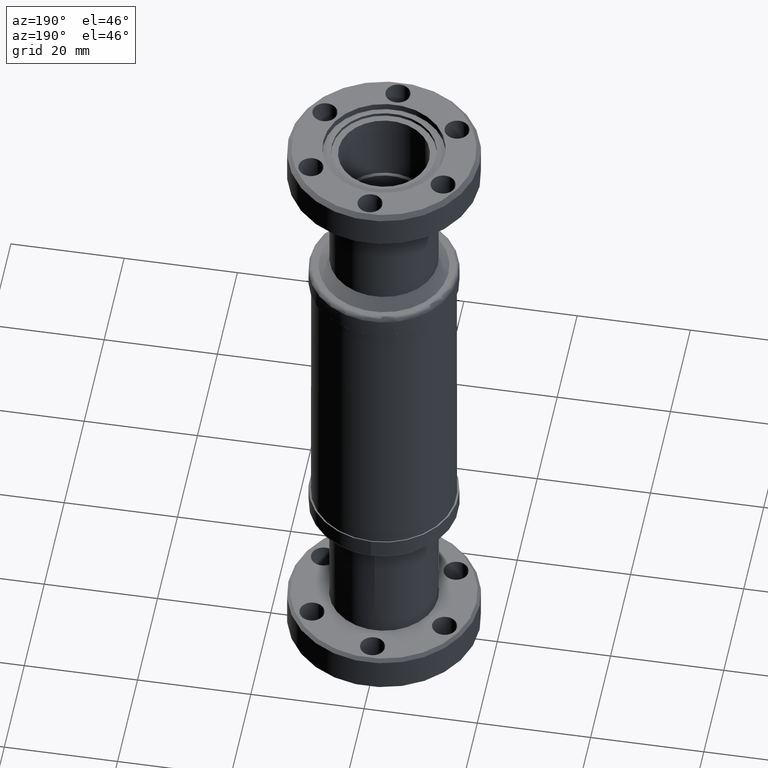
[diagram: clean part render]
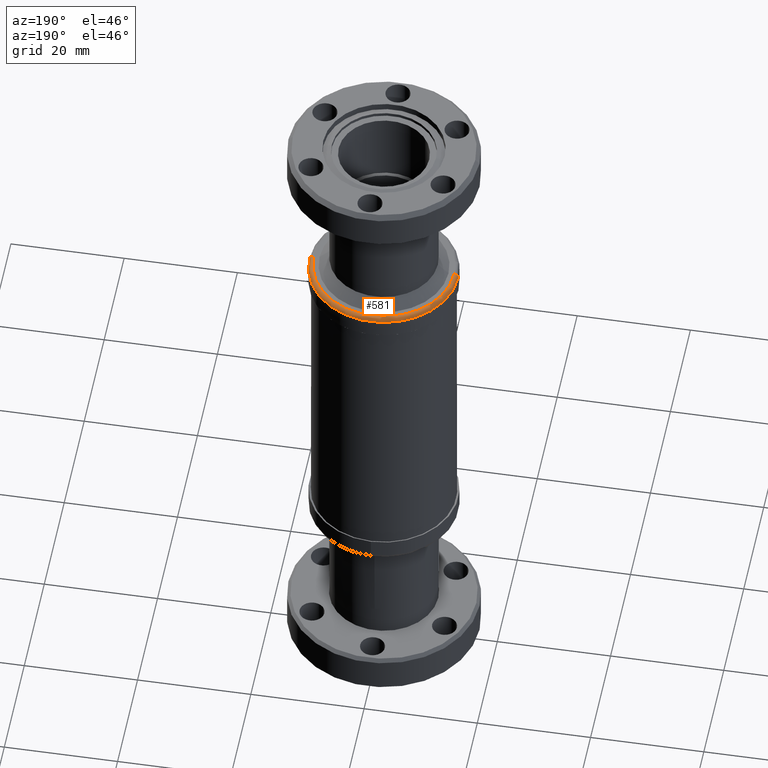
[diagram: same view with one face highlighted and labeled with its STEP entity id]
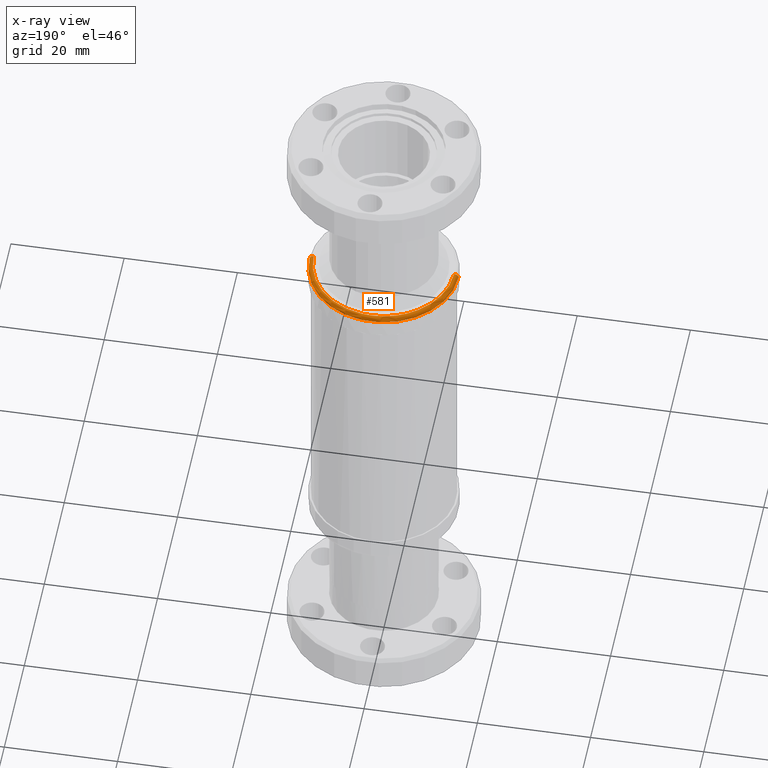
[diagram: x-ray of the same camera — body ghosted, the highlighted face saturated]
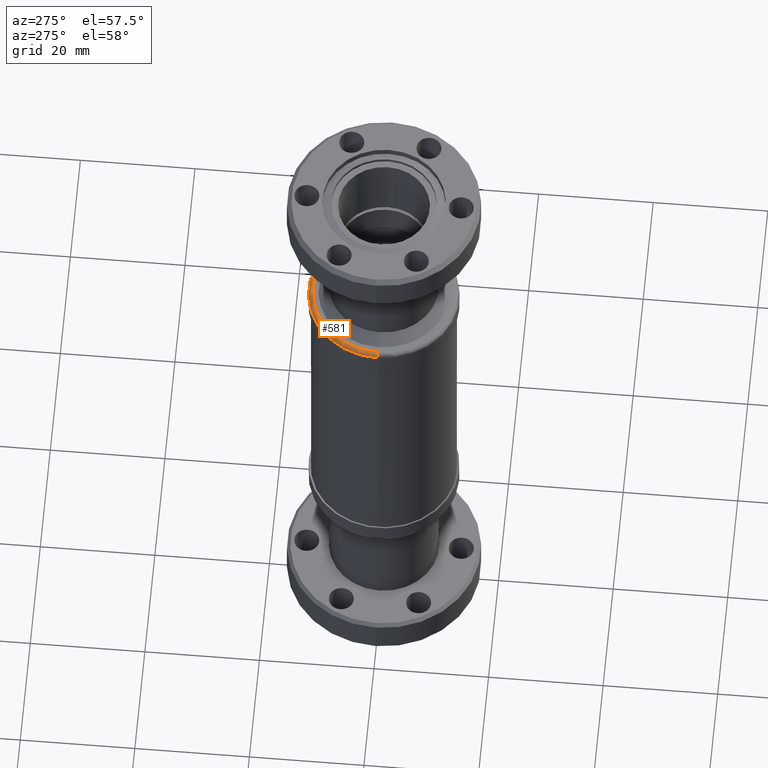
[diagram: same view with one face highlighted and labeled with its STEP entity id]
A machine part, auxiliary view. The second image highlights one B-rep face of the part: STEP entity #581.
The next image is the same camera in x-ray: the body ghosted, the highlighted face saturated — about 0% of this face is hidden behind the body in this view.
A second angle (auxiliary view) of the same face is appended — the face is thin or edge-on in the first view.
In plain terms, the highlighted toroidal blend (fillet) surface has major radius 12.3825 mm and minor (blend) radius 0.762 mm.
Its self-contained STEP definition (entity closure, byte-faithful):
#18 = CIRCLE ( 'NONE', #858, 0.5174999999999986300 ) ;
#76 = CIRCLE ( 'NONE', #847, 0.03000000000000077300 ) ;
#84 = ORIENTED_EDGE ( 'NONE', *, *, #1749, .T. ) ;
#266 = ORIENTED_EDGE ( 'NONE', *, *, #476, .T. ) ;
#290 = ORIENTED_EDGE ( 'NONE', *, *, #475, .F. ) ;
#333 = ORIENTED_EDGE ( 'NONE', *, *, #1849, .T. ) ;
#405 = B_SPLINE_CURVE_WITH_KNOTS ( 'NONE', 3,
 ( #2281, #2280, #2274, #2273, #2271, #2270, #2269, #2267, #2266, #2265, #2264, #2263, #2262, #2261, #2260, #2259, #2257, #2256, #2255, #2253, #2252, #2251, #2249, #2248, #2247, #2246, #2245, #2244, #2243, #2242, #2241, #2240, #2239, #2237, #2236, #2235, #2233, #2232, #2230, #2229, #2228, #2227, #2226, #2225, #2224, #2223, #2222, #2221, #2220, #2219, #2218, #2217, #2216, #2215, #2214, #2213, #2212, #2211, #2209, #2207, #2206, #2205, #2204, #2203, #2202, #2201, #2200, #2199, #2198, #2197, #2196, #2195, #2194, #2193, #2192, #2190, #2189, #2188, #2187 ),
 .UNSPECIFIED., .F., .F.,
 ( 4, 2, 2, 2, 1, 1, 2, 2, 2, 2, 2, 2, 2, 1, 2, 2, 1, 1, 2, 2, 2, 2, 2, 2, 2, 2, 1, 2, 2, 2, 2, 1, 1, 2, 2, 2, 2, 2, 1, 2, 2, 1, 1, 2, 4 ),
 ( 0.0000000000000000000, 0.05809807759236154700, 0.06172920744188420400, 0.06263698990426483400, 0.06354477236664547700, 0.06536033729140663900, 0.07262259699045139900, 0.08714711638854089100, 0.09077824623806320100, 0.09440937608758552500, 0.1016716357866301000, 0.1161961551847192500, 0.1234584148837639100, 0.1243661973461445700, 0.1248200885773347700, 0.1252739798085250000, 0.1270895447332858800, 0.1307206745828075600, 0.1452451939808944400, 0.1742942327770681300, 0.2323923103694156000, 0.2469168297675024800, 0.2614413491655893700, 0.2904903879617630200, 0.3485884655541102700, 0.3631129849521970700, 0.3703752446512405500, 0.3740063745007622400, 0.3776375043502839800, 0.4066865431464583000, 0.4357355819426325700, 0.4366433644050130000, 0.4370972556362032200, 0.4373242012517983800, 0.4375511468673934900, 0.4393667117921539700, 0.4429978416416748300, 0.4502601013407167600, 0.4507139925719068600, 0.4509409381875019700, 0.4511678838030970300, 0.4520756662654772400, 0.4538912311902377200, 0.4575223610397586300, 0.4647846207388004500 ),
 .UNSPECIFIED. ) ;
#410 = B_SPLINE_CURVE_WITH_KNOTS ( 'NONE', 3,
 ( #1545, #1552, #1539, #1538, #1537, #1536, #1534, #1533, #1532, #1531, #1530, #1529, #1528, #1527, #1526, #1525, #1524, #1523, #1521, #1520, #1519, #1516, #1514, #1513, #1512, #1511, #1510, #1509, #1508, #1507, #1506, #1505, #1504, #1503, #1502, #1501, #1500, #1499, #1497, #1496, #1495, #1494, #1493, #1492, #1491, #1490, #1488, #1487, #1486, #1485, #1484, #1483, #1482, #1481, #1480, #1479, #1478, #1477, #1476, #1475, #1474, #1473, #1471, #1470, #1467, #1466, #1465, #1464, #1463, #1461, #1460, #1459, #1456, #1455, #1454, #1453, #1452, #1451, #1450, #1449, #1448, #1446, #1445, #1444, #1443, #1442, #1441, #1440, #1438, #1437, #1436, #1433, #1432, #1431, #1430, #1429, #1428, #1427, #1426, #1425, #1424, #1423, #1422, #1420, #1418, #1415, #1414, #1413, #1411, #1410, #1409, #1408, #1407, #1406, #1405, #1404, #1403, #1401, #1400, #1399, #1398, #1397, #1396, #1395, #1394, #1392, #1391, #1390, #1389, #1388, #1386, #1385, #1384, #1383, #1382, #1381, #1380 ),
 .UNSPECIFIED., .F., .F.,
 ( 4, 2, 2, 1, 1, 1, 1, 1, 2, 2, 1, 2, 2, 2, 2, 2, 2, 2, 2, 2, 1, 1, 2, 2, 1, 2, 2, 1, 1, 2, 2, 2, 2, 1, 2, 2, 1, 2, 2, 2, 2, 1, 2, 2, 2, 2, 2, 2, 2, 1, 1, 1, 2, 2, 2, 2, 2, 1, 2, 2, 1, 1, 1, 2, 1, 2, 2, 1, 1, 2, 1, 1, 2, 2, 1, 2, 2, 2, 2, 2, 2, 4 ),
 ( 0.4658478909529416000, 0.4992323952210904200, 0.5034054582546090300, 0.5075785212881276400, 0.5159246473551648600, 0.5242707734222020700, 0.5284438364557206800, 0.5305303679724801000, 0.5310520008516699300, 0.5313128172912648900, 0.5315736337308597500, 0.5326168994892392900, 0.5409630255562751800, 0.5451360885897931200, 0.5472226201065520900, 0.5493091516233110600, 0.5576552776903469500, 0.5618283407238648900, 0.5623499736030547200, 0.5628716064822444400, 0.5639148722406239800, 0.5660014037573828400, 0.5993859080255260500, 0.6160781601595976000, 0.6244242862266333700, 0.6249459191058232000, 0.6252067355454180600, 0.6254675519850129200, 0.6265108177433924600, 0.6285973492601517600, 0.6327704122936704800, 0.6369434753271892000, 0.6390300068439486200, 0.6400732726023283800, 0.6405949054815182100, 0.6408557219211131800, 0.6411165383607080300, 0.6494626644277470300, 0.6536357274612665200, 0.6557222589780260500, 0.6578087904947858000, 0.6661549165618242400, 0.6828471686959011200, 0.6870202317294203900, 0.6911932947629395600, 0.6995394208299781100, 0.7329239250981325300, 0.7496161772322097500, 0.7501378101113995700, 0.7506594429905892900, 0.7517027087489693800, 0.7537892402657296900, 0.7579623032992504100, 0.7663084293662916200, 0.7996929336344560400, 0.8163851857685382500, 0.8205582488020588500, 0.8210798816812487900, 0.8213406981208438700, 0.8216015145604389500, 0.8226447803188190500, 0.8247313118355791300, 0.8330774379026195700, 0.8664619421707813200, 0.8831541943048621900, 0.8915003203719027400, 0.8935868518886629400, 0.8956733834054230200, 0.8998464464389432900, 0.9332309507071053800, 0.9415770767741459300, 0.9457501398076662000, 0.9462717726868562500, 0.9467934055660463000, 0.9478366713244263900, 0.9499232028411865900, 0.9666154549752674600, 0.9707885180087876300, 0.9728750495255478200, 0.9749615810423077900, 0.9833077071093483400, 0.9999999592434292200 ),
 .UNSPECIFIED. ) ;
#461 = EDGE_CURVE ( 'NONE', #3337, #3290, #18, .T. ) ;
#475 = EDGE_CURVE ( 'NONE', #3290, #3044, #76, .T. ) ;
#476 = EDGE_CURVE ( 'NONE', #3329, #3044, #405, .T. ) ;
#581 = ADVANCED_FACE ( 'NONE', ( #3884 ), #3880, .T. ) ;
#762 = AXIS2_PLACEMENT_3D ( 'NONE', #4448, #4447, #4446 ) ;
#847 = AXIS2_PLACEMENT_3D ( 'NONE', #2279, #2278, #2277 ) ;
#858 = AXIS2_PLACEMENT_3D ( 'NONE', #2361, #2360, #2359 ) ;
#961 = CARTESIAN_POINT ( 'NONE',  ( -0.5174999999999986300, 6.337547185587534500E-017, 2.296970110498947300 ) ) ;
#998 = CARTESIAN_POINT ( 'NONE',  ( 0.06806570785186244500, 0.4827248796282762000, 2.326970110498948000 ) ) ;
#1054 = CARTESIAN_POINT ( 'NONE',  ( 0.5174999999999986300, 0.0000000000000000000, 2.296970110498947300 ) ) ;
#1177 = CARTESIAN_POINT ( 'NONE',  ( -0.4875025814170049800, 5.970184759084071200E-017, 2.326970110387886100 ) ) ;
#1201 = CARTESIAN_POINT ( 'NONE',  ( 0.4875140269350820600, 1.985593463194945100E-009, 2.326970107219699100 ) ) ;
#1380 = CARTESIAN_POINT ( 'NONE',  ( 0.06806570785186244500, 0.4827248796282762000, 2.326970110498948000 ) ) ;
#1381 = CARTESIAN_POINT ( 'NONE',  ( 0.06405527480657879900, 0.4832900111975908500, 2.326970110498947500 ) ) ;
#1382 = CARTESIAN_POINT ( 'NONE',  ( 0.05872519529755616800, 0.4839971431499522900, 2.326970110595791800 ) ) ;
#1383 = CARTESIAN_POINT ( 'NONE',  ( 0.04873041255648712100, 0.4850744596494589400, 2.326970110185071500 ) ) ;
#1384 = CARTESIAN_POINT ( 'NONE',  ( 0.04506552606340697600, 0.4854353140165872900, 2.326970109936203900 ) ) ;
#1385 = CARTESIAN_POINT ( 'NONE',  ( 0.04006624574735843900, 0.4858604203216446100, 2.326970109267394400 ) ) ;
#1386 = CARTESIAN_POINT ( 'NONE',  ( 0.03920365109888777900, 0.4859321059592570100, 2.326970109141892200 ) ) ;
#1388 = CARTESIAN_POINT ( 'NONE',  ( 0.03648169689746070400, 0.4861454347023498900, 2.326970108688657800 ) ) ;
#1389 = CARTESIAN_POINT ( 'NONE',  ( 0.03516782228966130300, 0.4862426561649776900, 2.326970108447819800 ) ) ;
#1390 = CARTESIAN_POINT ( 'NONE',  ( 0.03136789556068438100, 0.4865094526058341700, 2.326970107701198800 ) ) ;
#1391 = CARTESIAN_POINT ( 'NONE',  ( 0.02902356010456426000, 0.4866542423900323000, 2.326970107171884500 ) ) ;
#1392 = CARTESIAN_POINT ( 'NONE',  ( 0.01825047715221613300, 0.4872540206234266500, 2.326970104580441400 ) ) ;
#1394 = CARTESIAN_POINT ( 'NONE',  ( 0.01267050780096278800, 0.4873632686011240000, 2.326970102867457400 ) ) ;
#1395 = CARTESIAN_POINT ( 'NONE',  ( 0.009828839649191066200, 0.4874225638779858300, 2.326970102758603200 ) ) ;
#1396 = CARTESIAN_POINT ( 'NONE',  ( 0.009426750743447351700, 0.4874304615193037500, 2.326970102773819400 ) ) ;
#1397 = CARTESIAN_POINT ( 'NONE',  ( 0.009131957228765781900, 0.4874359115565524100, 2.326970102838770100 ) ) ;
#1398 = CARTESIAN_POINT ( 'NONE',  ( 0.009002443591155673600, 0.4874382580266972100, 2.326970102879407400 ) ) ;
#1399 = CARTESIAN_POINT ( 'NONE',  ( 0.008978269653586029600, 0.4874387264489322100, 2.326970102889117900 ) ) ;
#1400 = CARTESIAN_POINT ( 'NONE',  ( 0.008594182728594699000, 0.4874454366362170300, 2.326970103040083300 ) ) ;
#1401 = CARTESIAN_POINT ( 'NONE',  ( 0.006865774028767718900, 0.4874746157505522900, 2.326970103710991100 ) ) ;
#1403 = CARTESIAN_POINT ( 'NONE',  ( 0.002064230077569131000, 0.4875302501093864400, 2.326970105367455900 ) ) ;
#1404 = CARTESIAN_POINT ( 'NONE',  ( -0.002545688663370033300, 0.4875185780323191800, 2.326970106502507900 ) ) ;
#1405 = CARTESIAN_POINT ( 'NONE',  ( -0.01791034484302231700, 0.4873350527940316100, 2.326970109559359600 ) ) ;
#1406 = CARTESIAN_POINT ( 'NONE',  ( -0.03173226290862109200, 0.4866490269879761900, 2.326970109935080800 ) ) ;
#1407 = CARTESIAN_POINT ( 'NONE',  ( -0.04626834085140256500, 0.4853086531579680600, 2.326970110083804500 ) ) ;
#1408 = CARTESIAN_POINT ( 'NONE',  ( -0.04856194608449961000, 0.4850808238282681200, 2.326970110090286000 ) ) ;
#1409 = CARTESIAN_POINT ( 'NONE',  ( -0.05009065156457911900, 0.4849253402880113200, 2.326970110091845600 ) ) ;
#1410 = CARTESIAN_POINT ( 'NONE',  ( -0.05096415855723993000, 0.4848345166561380800, 2.326970110091174200 ) ) ;
#1411 = CARTESIAN_POINT ( 'NONE',  ( -0.05535858321774046700, 0.4843645303826461500, 2.326970110091525900 ) ) ;
#1413 = CARTESIAN_POINT ( 'NONE',  ( -0.06589292502933145900, 0.4831217729154994000, 2.326970110102632100 ) ) ;
#1414 = CARTESIAN_POINT ( 'NONE',  ( -0.07638293317359025300, 0.4815354651136446500, 2.326970110144166400 ) ) ;
#1415 = CARTESIAN_POINT ( 'NONE',  ( -0.09728394754890051800, 0.4779077854817776500, 2.326970110255078200 ) ) ;
#1418 = CARTESIAN_POINT ( 'NONE',  ( -0.1145697083751649900, 0.4741259227508706200, 2.326970110399139400 ) ) ;
#1420 = CARTESIAN_POINT ( 'NONE',  ( -0.1324608824912574500, 0.4691778933012166800, 2.326970110479301500 ) ) ;
#1422 = CARTESIAN_POINT ( 'NONE',  ( -0.1371283411297165300, 0.4678184499683135100, 2.326970110491370500 ) ) ;
#1423 = CARTESIAN_POINT ( 'NONE',  ( -0.1383997564291633300, 0.4674425013311738200, 2.326970110493879600 ) ) ;
#1424 = CARTESIAN_POINT ( 'NONE',  ( -0.1389292986212344000, 0.4672851356125953800, 2.326970110494812200 ) ) ;
#1425 = CARTESIAN_POINT ( 'NONE',  ( -0.1390365782625824800, 0.4672532592892645900, 2.326970110495002700 ) ) ;
#1426 = CARTESIAN_POINT ( 'NONE',  ( -0.1394800026063387800, 0.4671210361178360100, 2.326970110495715400 ) ) ;
#1427 = CARTESIAN_POINT ( 'NONE',  ( -0.1401439007868029200, 0.4669225551586451100, 2.326970110496700400 ) ) ;
#1428 = CARTESIAN_POINT ( 'NONE',  ( -0.1408040861377814200, 0.4667236502481133000, 2.326970110497441200 ) ) ;
#1429 = CARTESIAN_POINT ( 'NONE',  ( -0.1447503647317027200, 0.4655286413864028200, 2.326970110500942400 ) ) ;
#1430 = CARTESIAN_POINT ( 'NONE',  ( -0.1481526709962936500, 0.4644552130810869500, 2.326970110497396300 ) ) ;
#1431 = CARTESIAN_POINT ( 'NONE',  ( -0.1646422857503186700, 0.4590640556345368400, 2.326970110457080100 ) ) ;
#1432 = CARTESIAN_POINT ( 'NONE',  ( -0.1761620983269457900, 0.4546821799492097300, 2.326970110357850600 ) ) ;
#1433 = CARTESIAN_POINT ( 'NONE',  ( -0.2059759799280313200, 0.4423663142312087000, 2.326970110143050400 ) ) ;
#1436 = CARTESIAN_POINT ( 'NONE',  ( -0.2195507190610751500, 0.4353506818775016400, 2.326970110178243200 ) ) ;
#1437 = CARTESIAN_POINT ( 'NONE',  ( -0.2295013547382025500, 0.4301020088835151900, 2.326970110373190800 ) ) ;
#1438 = CARTESIAN_POINT ( 'NONE',  ( -0.2311388383451238900, 0.4292213715536992700, 2.326970110414424500 ) ) ;
#1440 = CARTESIAN_POINT ( 'NONE',  ( -0.2330754283866455200, 0.4281718882059766300, 2.326970110462384800 ) ) ;
#1441 = CARTESIAN_POINT ( 'NONE',  ( -0.2339137589881681900, 0.4277148945889511800, 2.326970110482793800 ) ) ;
#1442 = CARTESIAN_POINT ( 'NONE',  ( -0.2346657999960445900, 0.4273029398264442400, 2.326970110495526300 ) ) ;
#1443 = CARTESIAN_POINT ( 'NONE',  ( -0.2349854479662635800, 0.4271275018255852900, 2.326970110498441700 ) ) ;
#1444 = CARTESIAN_POINT ( 'NONE',  ( -0.2351103728788787900, 0.4270588816329950500, 2.326970110498877800 ) ) ;
#1445 = CARTESIAN_POINT ( 'NONE',  ( -0.2351909758669832300, 0.4270145966349850900, 2.326970110498979100 ) ) ;
#1446 = CARTESIAN_POINT ( 'NONE',  ( -0.2354832811137834700, 0.4268539318835796200, 2.326970110498322700 ) ) ;
#1448 = CARTESIAN_POINT ( 'NONE',  ( -0.2437029568989926000, 0.4223232875441116400, 2.326970110319531000 ) ) ;
#1449 = CARTESIAN_POINT ( 'NONE',  ( -0.2515488916481476400, 0.4177029652300032800, 2.326970107300672600 ) ) ;
#1450 = CARTESIAN_POINT ( 'NONE',  ( -0.2746740138053668800, 0.4031837399441316500, 2.326970106407670400 ) ) ;
#1451 = CARTESIAN_POINT ( 'NONE',  ( -0.2895405106923149600, 0.3926206436446835800, 2.326970110323820500 ) ) ;
#1452 = CARTESIAN_POINT ( 'NONE',  ( -0.3073430059987821700, 0.3784357248414559300, 2.326970110264956500 ) ) ;
#1453 = CARTESIAN_POINT ( 'NONE',  ( -0.3108641869929425500, 0.3755493581200999900, 2.326970110353325800 ) ) ;
#1454 = CARTESIAN_POINT ( 'NONE',  ( -0.3160849699585346300, 0.3711473774860812300, 2.326970110473185000 ) ) ;
#1455 = CARTESIAN_POINT ( 'NONE',  ( -0.3177200527098033000, 0.3697508725006041200, 2.326970110507625500 ) ) ;
#1456 = CARTESIAN_POINT ( 'NONE',  ( -0.3214499056099687200, 0.3665154212780453700, 2.326970110486618300 ) ) ;
#1459 = CARTESIAN_POINT ( 'NONE',  ( -0.3233025064380584100, 0.3648834705154656600, 2.326970110431790100 ) ) ;
#1460 = CARTESIAN_POINT ( 'NONE',  ( -0.3325028006698351200, 0.3566535415352017300, 2.326970110026244800 ) ) ;
#1461 = CARTESIAN_POINT ( 'NONE',  ( -0.3432420553076503400, 0.3464406892763041100, 2.326970108992211500 ) ) ;
#1463 = CARTESIAN_POINT ( 'NONE',  ( -0.3534995940539725800, 0.3357509946495264000, 2.326970108724107700 ) ) ;
#1464 = CARTESIAN_POINT ( 'NONE',  ( -0.3577046914749380000, 0.3312328292449033800, 2.326970108724790300 ) ) ;
#1465 = CARTESIAN_POINT ( 'NONE',  ( -0.3585750409606484100, 0.3302896391632036400, 2.326970108730189100 ) ) ;
#1466 = CARTESIAN_POINT ( 'NONE',  ( -0.3599346380638175900, 0.3288073836418723400, 2.326970108753540600 ) ) ;
#1467 = CARTESIAN_POINT ( 'NONE',  ( -0.3606341101145355000, 0.3280401709405532700, 2.326970108774276000 ) ) ;
#1470 = CARTESIAN_POINT ( 'NONE',  ( -0.3627901208400631800, 0.3256590665797415300, 2.326970108862219000 ) ) ;
#1471 = CARTESIAN_POINT ( 'NONE',  ( -0.3643042896084300900, 0.3239657271835115800, 2.326970108955581200 ) ) ;
#1473 = CARTESIAN_POINT ( 'NONE',  ( -0.3690646206552490900, 0.3185575075694092000, 2.326970109313063300 ) ) ;
#1474 = CARTESIAN_POINT ( 'NONE',  ( -0.3726374890703709800, 0.3143883209198282100, 2.326970109672224400 ) ) ;
#1475 = CARTESIAN_POINT ( 'NONE',  ( -0.3764764737529242000, 0.3097210966721739000, 2.326970109985993900 ) ) ;
#1476 = CARTESIAN_POINT ( 'NONE',  ( -0.3767096222833444300, 0.3094373167355897200, 2.326970110004880500 ) ) ;
#1477 = CARTESIAN_POINT ( 'NONE',  ( -0.3767847019130816100, 0.3093459166837890200, 2.326970110010987200 ) ) ;
#1478 = CARTESIAN_POINT ( 'NONE',  ( -0.3773277074058453100, 0.3086833606785281400, 2.326970110054077200 ) ) ;
#1479 = CARTESIAN_POINT ( 'NONE',  ( -0.3783947036851172400, 0.3073767035800652500, 2.326970110134511000 ) ) ;
#1480 = CARTESIAN_POINT ( 'NONE',  ( -0.3794052783957257400, 0.3061259608211718300, 2.326970110199195300 ) ) ;
#1481 = CARTESIAN_POINT ( 'NONE',  ( -0.3813527769332080200, 0.3037003923836934500, 2.326970110311211000 ) ) ;
#1482 = CARTESIAN_POINT ( 'NONE',  ( -0.3825529392651024800, 0.3021846033416956100, 2.326970110362862200 ) ) ;
#1483 = CARTESIAN_POINT ( 'NONE',  ( -0.3858704435972389300, 0.2979506657633260200, 2.326970110473849400 ) ) ;
#1484 = CARTESIAN_POINT ( 'NONE',  ( -0.3877053410453085700, 0.2955464409995720600, 2.326970110491009000 ) ) ;
#1485 = CARTESIAN_POINT ( 'NONE',  ( -0.3906706888906195100, 0.2916138224610605500, 2.326970110502474500 ) ) ;
#1486 = CARTESIAN_POINT ( 'NONE',  ( -0.3918011758148166000, 0.2900853825580060900, 2.326970110496777700 ) ) ;
#1487 = CARTESIAN_POINT ( 'NONE',  ( -0.3929922253454296600, 0.2884673373295506500, 2.326970110496082300 ) ) ;
#1488 = CARTESIAN_POINT ( 'NONE',  ( -0.3934613679148959400, 0.2878267960789224200, 2.326970110497023700 ) ) ;
#1490 = CARTESIAN_POINT ( 'NONE',  ( -0.3937669163030489400, 0.2874086329226359600, 2.326970110498614500 ) ) ;
#1491 = CARTESIAN_POINT ( 'NONE',  ( -0.3938520633214001600, 0.2872920732377850500, 2.326970110498874700 ) ) ;
#1492 = CARTESIAN_POINT ( 'NONE',  ( -0.3938835342188969900, 0.2872489924849030400, 2.326970110498940900 ) ) ;
#1493 = CARTESIAN_POINT ( 'NONE',  ( -0.3938663309152192800, 0.2872725792589217500, 2.326970110499271700 ) ) ;
#1494 = CARTESIAN_POINT ( 'NONE',  ( -0.3941557098335187700, 0.2868763117255572800, 2.326970110497861300 ) ) ;
#1495 = CARTESIAN_POINT ( 'NONE',  ( -0.3974307702030172600, 0.2823819333069592700, 2.326970110402104600 ) ) ;
#1496 = CARTESIAN_POINT ( 'NONE',  ( -0.4006280541068501500, 0.2778308164316755600, 2.326970109154062000 ) ) ;
#1497 = CARTESIAN_POINT ( 'NONE',  ( -0.4094441244874783000, 0.2648367064256096900, 2.326970105847602000 ) ) ;
#1499 = CARTESIAN_POINT ( 'NONE',  ( -0.4150393524796632300, 0.2559820530822415900, 2.326970104511647100 ) ) ;
#1500 = CARTESIAN_POINT ( 'NONE',  ( -0.4309424281400974800, 0.2288992817069250300, 2.326970108517133700 ) ) ;
#1501 = CARTESIAN_POINT ( 'NONE',  ( -0.4409674314872396600, 0.2089771337304725800, 2.326970110623722800 ) ) ;
#1502 = CARTESIAN_POINT ( 'NONE',  ( -0.4498519400601110300, 0.1878626576516188300, 2.326970110498775200 ) ) ;
#1503 = CARTESIAN_POINT ( 'NONE',  ( -0.4506025585946296700, 0.1860482803353345200, 2.326970110498913800 ) ) ;
#1504 = CARTESIAN_POINT ( 'NONE',  ( -0.4509760475757999000, 0.1851403422673220400, 2.326970110498946600 ) ) ;
#1505 = CARTESIAN_POINT ( 'NONE',  ( -0.4511085893712393800, 0.1848169701461084000, 2.326970110498948900 ) ) ;
#1506 = CARTESIAN_POINT ( 'NONE',  ( -0.4512251851286618300, 0.1845321652256289000, 2.326970110498945300 ) ) ;
#1507 = CARTESIAN_POINT ( 'NONE',  ( -0.4512857911725271500, 0.1843839398246869800, 2.326970110498940000 ) ) ;
#1508 = CARTESIAN_POINT ( 'NONE',  ( -0.4518518645622324700, 0.1829974422577833000, 2.326970110498772100 ) ) ;
#1509 = CARTESIAN_POINT ( 'NONE',  ( -0.4525021236817629000, 0.1813920507823733600, 2.326970110499598100 ) ) ;
#1510 = CARTESIAN_POINT ( 'NONE',  ( -0.4548583698589870300, 0.1754429371466957300, 2.326970110451470400 ) ) ;
#1511 = CARTESIAN_POINT ( 'NONE',  ( -0.4569756700443415900, 0.1699675685236045900, 2.326970110374419600 ) ) ;
#1512 = CARTESIAN_POINT ( 'NONE',  ( -0.4601004259719676500, 0.1611648007721668800, 2.326970109705767800 ) ) ;
#1513 = CARTESIAN_POINT ( 'NONE',  ( -0.4607488273014079300, 0.1593062186240347400, 2.326970109541662600 ) ) ;
#1514 = CARTESIAN_POINT ( 'NONE',  ( -0.4620855578451517100, 0.1553908715949570700, 2.326970109132760800 ) ) ;
#1516 = CARTESIAN_POINT ( 'NONE',  ( -0.4627911392800429500, 0.1532784274321625500, 2.326970108882783000 ) ) ;
#1519 = CARTESIAN_POINT ( 'NONE',  ( -0.4646656332737582100, 0.1475460854932550700, 2.326970108177022200 ) ) ;
#1520 = CARTESIAN_POINT ( 'NONE',  ( -0.4657267168053020300, 0.1441428245621151600, 2.326970107718786500 ) ) ;
#1521 = CARTESIAN_POINT ( 'NONE',  ( -0.4684293242876416700, 0.1352174911758110000, 2.326970106647193100 ) ) ;
#1523 = CARTESIAN_POINT ( 'NONE',  ( -0.4695974996856267000, 0.1309823226211300500, 2.326970106383691000 ) ) ;
#1524 = CARTESIAN_POINT ( 'NONE',  ( -0.4703583464017454000, 0.1281950785926477500, 2.326970106762425800 ) ) ;
#1525 = CARTESIAN_POINT ( 'NONE',  ( -0.4704542265102063000, 0.1278422252677773900, 2.326970106825550400 ) ) ;
#1526 = CARTESIAN_POINT ( 'NONE',  ( -0.4705380970415415400, 0.1275322657479570400, 2.326970106901002000 ) ) ;
#1527 = CARTESIAN_POINT ( 'NONE',  ( -0.4705706880676071600, 0.1274117144151182500, 2.326970106932145100 ) ) ;
#1528 = CARTESIAN_POINT ( 'NONE',  ( -0.4706222821939803300, 0.1272207039293090400, 2.326970106983082200 ) ) ;
#1529 = CARTESIAN_POINT ( 'NONE',  ( -0.4707539185535628000, 0.1267320630353007100, 2.326970107110285300 ) ) ;
#1530 = CARTESIAN_POINT ( 'NONE',  ( -0.4711910232866336500, 0.1251028070540807800, 2.326970107522666500 ) ) ;
#1531 = CARTESIAN_POINT ( 'NONE',  ( -0.4723056027831888900, 0.1208608974997692900, 2.326970108449196100 ) ) ;
#1532 = CARTESIAN_POINT ( 'NONE',  ( -0.4745928220546948900, 0.1116952000664303400, 2.326970109799170400 ) ) ;
#1533 = CARTESIAN_POINT ( 'NONE',  ( -0.4775348782866857800, 0.09852303560788217000, 2.326970110457240900 ) ) ;
#1534 = CARTESIAN_POINT ( 'NONE',  ( -0.4800398592473060200, 0.08526078779561527300, 2.326970110498239700 ) ) ;
#1536 = CARTESIAN_POINT ( 'NONE',  ( -0.4813449352642323300, 0.07726939559149825800, 2.326970110498976800 ) ) ;
#1537 = CARTESIAN_POINT ( 'NONE',  ( -0.4821708910558403800, 0.07193496106594546300, 2.326970110498705100 ) ) ;
#1538 = CARTESIAN_POINT ( 'NONE',  ( -0.4825547968681977400, 0.06931830165401908800, 2.326970110499143400 ) ) ;
#1539 = CARTESIAN_POINT ( 'NONE',  ( -0.4860211741329864000, 0.04416130265595324300, 2.326970110496711100 ) ) ;
#1545 = CARTESIAN_POINT ( 'NONE',  ( -0.4875025814170049800, 5.970184759084071200E-017, 2.326970110387886100 ) ) ;
#1552 = CARTESIAN_POINT ( 'NONE',  ( -0.4875018733712065400, 0.02191457344175517000, 2.326970110448811200 ) ) ;
#1749 = EDGE_CURVE ( 'NONE', #3337, #3926, #3615, .T. ) ;
#1849 = EDGE_CURVE ( 'NONE', #3926, #3329, #410, .T. ) ;
#2187 = CARTESIAN_POINT ( 'NONE',  ( 0.4875140269350820600, 1.985593463194945100E-009, 2.326970107219699100 ) ) ;
#2188 = CARTESIAN_POINT ( 'NONE',  ( 0.4875135589486917500, 0.003306750968903928700, 2.326970107438506700 ) ) ;
#2189 = CARTESIAN_POINT ( 'NONE',  ( 0.4874806301620413000, 0.007349523021843774400, 2.326970107881262800 ) ) ;
#2190 = CARTESIAN_POINT ( 'NONE',  ( 0.4873002110970028900, 0.01451474238599737400, 2.326970108677866500 ) ) ;
#2192 = CARTESIAN_POINT ( 'NONE',  ( 0.4871767775030148600, 0.01837255433235712000, 2.326970109106074200 ) ) ;
#2193 = CARTESIAN_POINT ( 'NONE',  ( 0.4869517050797386200, 0.02335331107347530400, 2.326970109579546500 ) ) ;
#2194 = CARTESIAN_POINT ( 'NONE',  ( 0.4868351065671344700, 0.02559051093383837800, 2.326970109766298900 ) ) ;
#2195 = CARTESIAN_POINT ( 'NONE',  ( 0.4867835294366701900, 0.02653690566490422500, 2.326970109841097800 ) ) ;
#2196 = CARTESIAN_POINT ( 'NONE',  ( 0.4867663726705258000, 0.02684825823280980900, 2.326970109865262000 ) ) ;
#2197 = CARTESIAN_POINT ( 'NONE',  ( 0.4867372257815894000, 0.02736814589374739900, 2.326970109904312100 ) ) ;
#2198 = CARTESIAN_POINT ( 'NONE',  ( 0.4866932076308642700, 0.02814212900837654400, 2.326970109960850400 ) ) ;
#2199 = CARTESIAN_POINT ( 'NONE',  ( 0.4866483798783775600, 0.02889856876399765600, 2.326970110011556500 ) ) ;
#2200 = CARTESIAN_POINT ( 'NONE',  ( 0.4861354463869714300, 0.03733903479530034700, 2.326970110546108500 ) ) ;
#2201 = CARTESIAN_POINT ( 'NONE',  ( 0.4855912817350300200, 0.04328685329278776600, 2.326970110503042000 ) ) ;
#2202 = CARTESIAN_POINT ( 'NONE',  ( 0.4850109714836630700, 0.04923444213844981000, 2.326970110495961500 ) ) ;
#2203 = CARTESIAN_POINT ( 'NONE',  ( 0.4848545662980409100, 0.05072137213280488600, 2.326970110492302600 ) ) ;
#2204 = CARTESIAN_POINT ( 'NONE',  ( 0.4846959782925132600, 0.05221037364930565500, 2.326970110496479700 ) ) ;
#2205 = CARTESIAN_POINT ( 'NONE',  ( 0.4846556434998805500, 0.05258313155012669200, 2.326970110498802800 ) ) ;
#2206 = CARTESIAN_POINT ( 'NONE',  ( 0.4846253224630837600, 0.05286356397983461900, 2.326970110498959100 ) ) ;
#2207 = CARTESIAN_POINT ( 'NONE',  ( 0.4846061754403868700, 0.05304049969996675600, 2.326970110498726400 ) ) ;
#2209 = CARTESIAN_POINT ( 'NONE',  ( 0.4845753830802517200, 0.05332346881569363700, 2.326970110496080000 ) ) ;
#2211 = CARTESIAN_POINT ( 'NONE',  ( 0.4845290064685096600, 0.05374790232191228900, 2.326970110489579900 ) ) ;
#2212 = CARTESIAN_POINT ( 'NONE',  ( 0.4844194779981556000, 0.05473810481833583900, 2.326970110457301700 ) ) ;
#2213 = CARTESIAN_POINT ( 'NONE',  ( 0.4843233402370906200, 0.05558660173949407600, 2.326970110402313300 ) ) ;
#2214 = CARTESIAN_POINT ( 'NONE',  ( 0.4821752313400301000, 0.07424977695458875900, 2.326970108848646300 ) ) ;
#2215 = CARTESIAN_POINT ( 'NONE',  ( 0.4790646622908617000, 0.09223064223964537500, 2.326970103755977300 ) ) ;
#2216 = CARTESIAN_POINT ( 'NONE',  ( 0.4708282549783658900, 0.1277253211297302300, 2.326970111275037400 ) ) ;
#2217 = CARTESIAN_POINT ( 'NONE',  ( 0.4657147188567722900, 0.1452520062371148400, 2.326970110499005700 ) ) ;
#2218 = CARTESIAN_POINT ( 'NONE',  ( 0.4588833201035637000, 0.1645826249146973300, 2.326970110498781900 ) ) ;
#2219 = CARTESIAN_POINT ( 'NONE',  ( 0.4581149154842548100, 0.1667111109450085700, 2.326970110499094500 ) ) ;
#2220 = CARTESIAN_POINT ( 'NONE',  ( 0.4564696648627994400, 0.1711651268144364100, 2.326970110498596700 ) ) ;
#2221 = CARTESIAN_POINT ( 'NONE',  ( 0.4539624775158354600, 0.1778024032467254200, 2.326970110496515300 ) ) ;
#2222 = CARTESIAN_POINT ( 'NONE',  ( 0.4513415261455505100, 0.1843075595694250400, 2.326970110491149300 ) ) ;
#2223 = CARTESIAN_POINT ( 'NONE',  ( 0.4459588889972337400, 0.1971398572839525300, 2.326970110477732900 ) ) ;
#2224 = CARTESIAN_POINT ( 'NONE',  ( 0.4421828897738227500, 0.2054572125820704800, 2.326970110465282500 ) ) ;
#2225 = CARTESIAN_POINT ( 'NONE',  ( 0.4225070294835586700, 0.2458416044874412700, 2.326970110403527400 ) ) ;
#2226 = CARTESIAN_POINT ( 'NONE',  ( 0.4042474836241263200, 0.2742625815938032900, 2.326970110379884500 ) ) ;
#2227 = CARTESIAN_POINT ( 'NONE',  ( 0.3754938173821493200, 0.3112985343402523400, 2.326970110439278400 ) ) ;
#2228 = CARTESIAN_POINT ( 'NONE',  ( 0.3656762219293907000, 0.3227191378025721100, 2.326970110470052400 ) ) ;
#2229 = CARTESIAN_POINT ( 'NONE',  ( 0.3508483944296786900, 0.3385475177807919500, 2.326970110496211100 ) ) ;
#2230 = CARTESIAN_POINT ( 'NONE',  ( 0.3458638231077814700, 0.3436287483940313500, 2.326970110500809200 ) ) ;
#2232 = CARTESIAN_POINT ( 'NONE',  ( 0.3361559455947582500, 0.3531302682735952800, 2.326970110495280200 ) ) ;
#2233 = CARTESIAN_POINT ( 'NONE',  ( 0.3312027457073968800, 0.3577796001467517000, 2.326970110486602300 ) ) ;
#2235 = CARTESIAN_POINT ( 'NONE',  ( 0.3059620494429359800, 0.3804988397542133400, 2.326970110434069600 ) ) ;
#2236 = CARTESIAN_POINT ( 'NONE',  ( 0.2842474270709545200, 0.3969825802397904400, 2.326970110385543600 ) ) ;
#2237 = CARTESIAN_POINT ( 'NONE',  ( 0.2498453025929750800, 0.4188269287272576900, 2.326970110422141400 ) ) ;
#2239 = CARTESIAN_POINT ( 'NONE',  ( 0.2380735084471712300, 0.4256289475815673300, 2.326970110448020300 ) ) ;
#2240 = CARTESIAN_POINT ( 'NONE',  ( 0.2200207595822658600, 0.4350772485169557800, 2.326970110481293700 ) ) ;
#2241 = CARTESIAN_POINT ( 'NONE',  ( 0.2124165164855017800, 0.4388568723766380600, 2.326970110493646900 ) ) ;
#2242 = CARTESIAN_POINT ( 'NONE',  ( 0.2039478580642894200, 0.4427938191003587500, 2.326970110498483900 ) ) ;
#2243 = CARTESIAN_POINT ( 'NONE',  ( 0.2016299062678580400, 0.4438493951576554200, 2.326970110498907600 ) ) ;
#2244 = CARTESIAN_POINT ( 'NONE',  ( 0.2006629508858000200, 0.4442866933945779900, 2.326970110498948900 ) ) ;
#2245 = CARTESIAN_POINT ( 'NONE',  ( 0.2004935324975693800, 0.4443631394291174800, 2.326970110498948000 ) ) ;
#2246 = CARTESIAN_POINT ( 'NONE',  ( 0.2003547627612067000, 0.4444257360394167600, 2.326970110498946200 ) ) ;
#2247 = CARTESIAN_POINT ( 'NONE',  ( 0.2001429024624814300, 0.4445212467128035700, 2.326970110498939500 ) ) ;
#2248 = CARTESIAN_POINT ( 'NONE',  ( 0.1999199181045594700, 0.4446215890387160700, 2.326970110498907100 ) ) ;
#2249 = CARTESIAN_POINT ( 'NONE',  ( 0.1985374564225594900, 0.4452428362783398800, 2.326970110498424800 ) ) ;
#2251 = CARTESIAN_POINT ( 'NONE',  ( 0.1969918934343160600, 0.4459318776369076100, 2.326970110498942200 ) ) ;
#2252 = CARTESIAN_POINT ( 'NONE',  ( 0.1913922096365521000, 0.4483798095299008600, 2.326970110411278100 ) ) ;
#2253 = CARTESIAN_POINT ( 'NONE',  ( 0.1863762082626449500, 0.4505237977389876500, 2.326970110270104400 ) ) ;
#2255 = CARTESIAN_POINT ( 'NONE',  ( 0.1768517292129715400, 0.4543138054080396200, 2.326970108913998000 ) ) ;
#2256 = CARTESIAN_POINT ( 'NONE',  ( 0.1733431766196220900, 0.4556717517990785400, 2.326970108262181600 ) ) ;
#2257 = CARTESIAN_POINT ( 'NONE',  ( 0.1675682460186268500, 0.4578165130239723000, 2.326970106775752900 ) ) ;
#2259 = CARTESIAN_POINT ( 'NONE',  ( 0.1654827614268634700, 0.4585755544021286000, 2.326970106176209800 ) ) ;
#2260 = CARTESIAN_POINT ( 'NONE',  ( 0.1616681101905262100, 0.4599363575072666900, 2.326970105035491600 ) ) ;
#2261 = CARTESIAN_POINT ( 'NONE',  ( 0.1598496499529303600, 0.4605716511117059500, 2.326970104466329600 ) ) ;
#2262 = CARTESIAN_POINT ( 'NONE',  ( 0.1512081357222274900, 0.4635389390199757800, 2.326970101747564800 ) ) ;
#2263 = CARTESIAN_POINT ( 'NONE',  ( 0.1457406203981670400, 0.4652499344378108200, 2.326970100073549200 ) ) ;
#2264 = CARTESIAN_POINT ( 'NONE',  ( 0.1397904271273407200, 0.4670591251308313700, 2.326970099505511100 ) ) ;
#2265 = CARTESIAN_POINT ( 'NONE',  ( 0.1377793608105747100, 0.4676535466962151700, 2.326970099650010700 ) ) ;
#2266 = CARTESIAN_POINT ( 'NONE',  ( 0.1362171033953790100, 0.4681083056333652500, 2.326970100308433300 ) ) ;
#2267 = CARTESIAN_POINT ( 'NONE',  ( 0.1358442646430096100, 0.4682162454309287100, 2.326970100525522800 ) ) ;
#2269 = CARTESIAN_POINT ( 'NONE',  ( 0.1356075448941013500, 0.4682846645107291400, 2.326970100678369000 ) ) ;
#2270 = CARTESIAN_POINT ( 'NONE',  ( 0.1351747073231436800, 0.4684095224749050800, 2.326970100966058400 ) ) ;
#2271 = CARTESIAN_POINT ( 'NONE',  ( 0.1335647121854118300, 0.4688715837160262700, 2.326970101994153800 ) ) ;
#2273 = CARTESIAN_POINT ( 'NONE',  ( 0.1322752025775260100, 0.4692359548945493300, 2.326970102735427500 ) ) ;
#2274 = CARTESIAN_POINT ( 'NONE',  ( 0.1103285411937629800, 0.4753403352545215200, 2.326970114131986700 ) ) ;
#2277 = DIRECTION ( 'NONE',  ( 0.0000000000000000000, 0.0000000000000000000, -1.000000000000000000 ) ) ;
#2278 = DIRECTION ( 'NONE',  ( 0.0000000000000000000, -1.000000000000000000, 0.0000000000000000000 ) ) ;
#2279 = CARTESIAN_POINT ( 'NONE',  ( 0.4874999999999977100, 0.0000000000000000000, 2.296970110498947300 ) ) ;
#2280 = CARTESIAN_POINT ( 'NONE',  ( 0.08929598760379028900, 0.4797294797584187300, 2.326970110498947500 ) ) ;
#2281 = CARTESIAN_POINT ( 'NONE',  ( 0.06806570785186244500, 0.4827248796282762000, 2.326970110498948000 ) ) ;
#2359 = DIRECTION ( 'NONE',  ( -1.000000000000000000, 0.0000000000000000000, 0.0000000000000000000 ) ) ;
#2360 = DIRECTION ( 'NONE',  ( 0.0000000000000000000, 0.0000000000000000000, -1.000000000000000000 ) ) ;
#2361 = CARTESIAN_POINT ( 'NONE',  ( 2.274720406756577800E-032, -1.895600338963814900E-033, 2.296970110498947300 ) ) ;
#2590 = ORIENTED_EDGE ( 'NONE', *, *, #461, .F. ) ;
#3044 = VERTEX_POINT ( 'NONE', #1201 ) ;
#3218 = EDGE_LOOP ( 'NONE', ( #2590, #84, #333, #266, #290 ) ) ;
#3290 = VERTEX_POINT ( 'NONE', #1054 ) ;
#3329 = VERTEX_POINT ( 'NONE', #998 ) ;
#3337 = VERTEX_POINT ( 'NONE', #961 ) ;
#3615 = CIRCLE ( 'NONE', #762, 0.03000000000000077300 ) ;
#3880 = TOROIDAL_SURFACE ( 'NONE', #4311, 0.4874999999999977100, 0.03000000000000074800 ) ;
#3884 = FACE_OUTER_BOUND ( 'NONE', #3218, .T. ) ;
#3926 = VERTEX_POINT ( 'NONE', #1177 ) ;
#4311 = AXIS2_PLACEMENT_3D ( 'NONE', #4780, #4794, #4775 ) ;
#4446 = DIRECTION ( 'NONE',  ( -1.000000000000000000, 1.224646799147351700E-016, 0.0000000000000000000 ) ) ;
#4447 = DIRECTION ( 'NONE',  ( 1.224646799147353200E-016, 1.000000000000000000, 0.0000000000000000000 ) ) ;
#4448 = CARTESIAN_POINT ( 'NONE',  ( -0.4874999999999977100, 5.970153145843319500E-017, 2.296970110498947300 ) ) ;
#4775 = DIRECTION ( 'NONE',  ( 1.000000000000000000, 0.0000000000000000000, 0.0000000000000000000 ) ) ;
#4780 = CARTESIAN_POINT ( 'NONE',  ( 2.561107494060246800E-017, 0.0000000000000000000, 2.296970110498947300 ) ) ;
#4794 = DIRECTION ( 'NONE',  ( -0.0000000000000000000, 0.0000000000000000000, 1.000000000000000000 ) ) ;